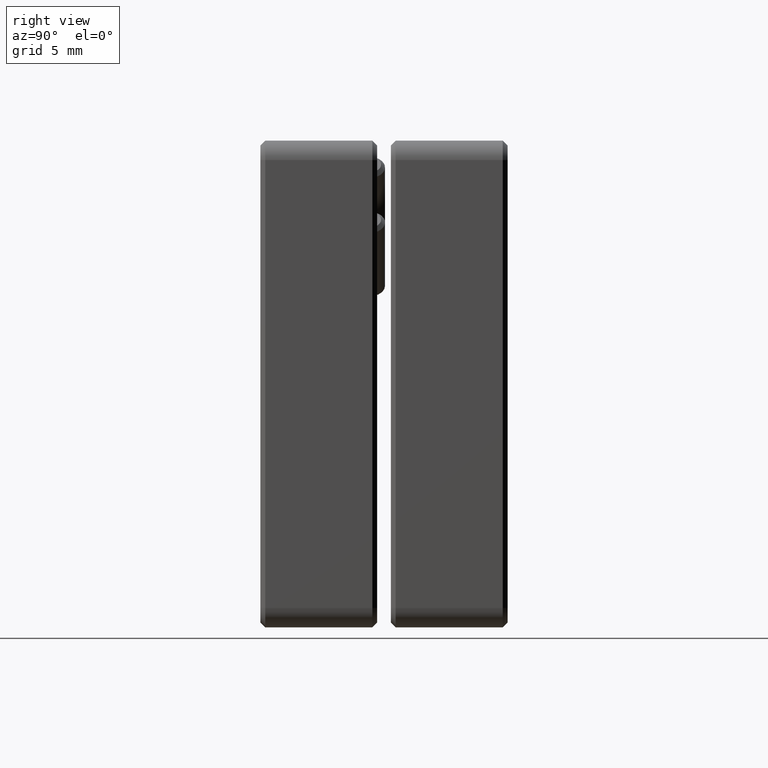
[diagram: clean part render]
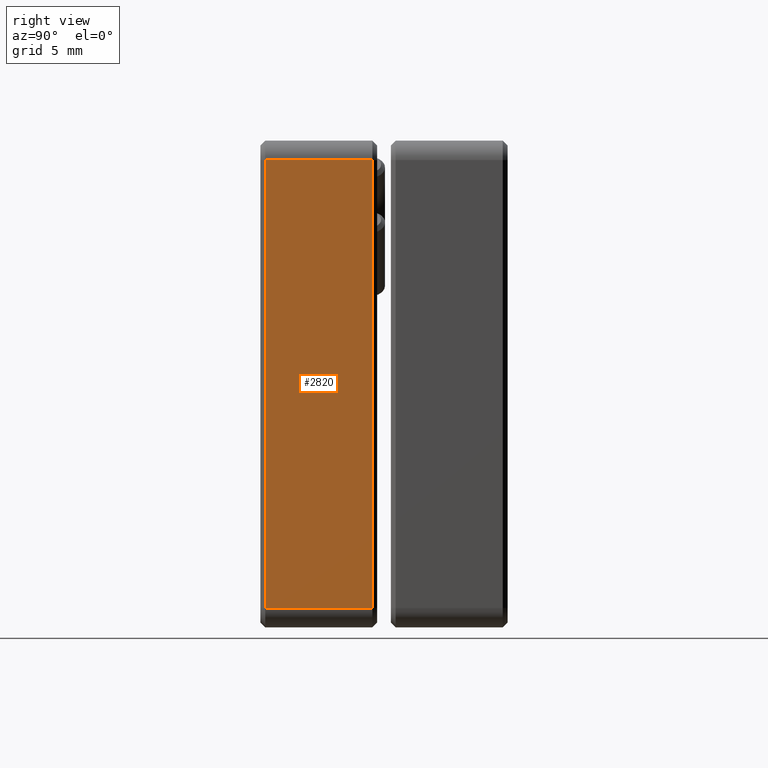
[diagram: same view with one face highlighted and labeled with its STEP entity id]
A machine part, right view. The second image highlights one B-rep face of the part: STEP entity #2820.
In plain terms, the highlighted planar face has unit normal (-1, 0, 0).
Its self-contained STEP definition (entity closure, byte-faithful):
#23 = EDGE_LOOP ( 'NONE', ( #1378, #2149, #2302, #1795 ) ) ;
#57 = CARTESIAN_POINT ( 'NONE',  ( 12.50000000000000355, -2.750000000000000000, -11.50000000000000000 ) ) ;
#153 = VERTEX_POINT ( 'NONE', #928 ) ;
#245 = VECTOR ( 'NONE', #3461, 1000.000000000000000 ) ;
#293 = LINE ( 'NONE', #1601, #245 ) ;
#472 = DIRECTION ( 'NONE',  ( -1.387778780781445429E-16, 0.0000000000000000000, -1.000000000000000000 ) ) ;
#622 = VERTEX_POINT ( 'NONE', #57 ) ;
#687 = AXIS2_PLACEMENT_3D ( 'NONE', #3089, #3057, #1722 ) ;
#803 = DIRECTION ( 'NONE',  ( -0.0000000000000000000, 1.000000000000000000, -0.0000000000000000000 ) ) ;
#904 = PLANE ( 'NONE',  #687 ) ;
#928 = CARTESIAN_POINT ( 'NONE',  ( 12.50000000000000711, -2.750000000000000000, 11.50000000000000178 ) ) ;
#983 = EDGE_CURVE ( 'NONE', #2688, #3456, #1304, .T. ) ;
#1304 = LINE ( 'NONE', #2426, #2918 ) ;
#1376 = EDGE_CURVE ( 'NONE', #3456, #153, #293, .T. ) ;
#1378 = ORIENTED_EDGE ( 'NONE', *, *, #1376, .T. ) ;
#1601 = CARTESIAN_POINT ( 'NONE',  ( 12.50000000000000711, 3.000000000000000000, 11.50000000000000178 ) ) ;
#1604 = DIRECTION ( 'NONE',  ( 1.387778780781445429E-16, 0.0000000000000000000, 1.000000000000000000 ) ) ;
#1722 = DIRECTION ( 'NONE',  ( 1.387778780781445429E-16, 0.0000000000000000000, 1.000000000000000000 ) ) ;
#1795 = ORIENTED_EDGE ( 'NONE', *, *, #983, .T. ) ;
#1897 = EDGE_CURVE ( 'NONE', #153, #622, #3135, .T. ) ;
#2004 = EDGE_CURVE ( 'NONE', #622, #2688, #2038, .T. ) ;
#2038 = LINE ( 'NONE', #2373, #2789 ) ;
#2149 = ORIENTED_EDGE ( 'NONE', *, *, #1897, .T. ) ;
#2289 = VECTOR ( 'NONE', #472, 1000.000000000000000 ) ;
#2302 = ORIENTED_EDGE ( 'NONE', *, *, #2004, .T. ) ;
#2325 = CARTESIAN_POINT ( 'NONE',  ( 12.50000000000000711, 2.750000000000000000, 11.50000000000000178 ) ) ;
#2373 = CARTESIAN_POINT ( 'NONE',  ( 12.50000000000000355, 3.000000000000000000, -11.50000000000000000 ) ) ;
#2426 = CARTESIAN_POINT ( 'NONE',  ( 12.50000000000000711, 2.750000000000000000, 11.50000000000000178 ) ) ;
#2600 = CARTESIAN_POINT ( 'NONE',  ( 12.50000000000000355, -2.750000000000000000, -12.49999999999999822 ) ) ;
#2664 = FACE_OUTER_BOUND ( 'NONE', #23, .T. ) ;
#2688 = VERTEX_POINT ( 'NONE', #3305 ) ;
#2789 = VECTOR ( 'NONE', #803, 1000.000000000000000 ) ;
#2820 = ADVANCED_FACE ( 'NONE', ( #2664 ), #904, .F. ) ;
#2918 = VECTOR ( 'NONE', #1604, 1000.000000000000000 ) ;
#3057 = DIRECTION ( 'NONE',  ( -1.000000000000000000, 0.0000000000000000000, 1.387778780781445429E-16 ) ) ;
#3089 = CARTESIAN_POINT ( 'NONE',  ( 12.50000000000000355, 3.000000000000000000, -12.49999999999999822 ) ) ;
#3135 = LINE ( 'NONE', #2600, #2289 ) ;
#3305 = CARTESIAN_POINT ( 'NONE',  ( 12.50000000000000355, 2.750000000000000000, -11.50000000000000000 ) ) ;
#3456 = VERTEX_POINT ( 'NONE', #2325 ) ;
#3461 = DIRECTION ( 'NONE',  ( 0.0000000000000000000, -1.000000000000000000, 0.0000000000000000000 ) ) ;